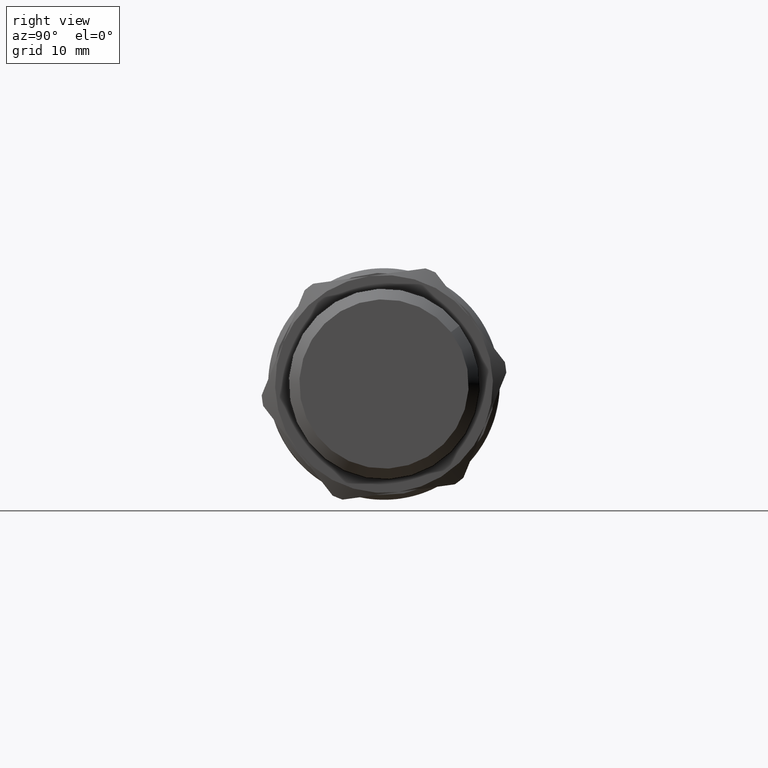
[diagram: clean part render]
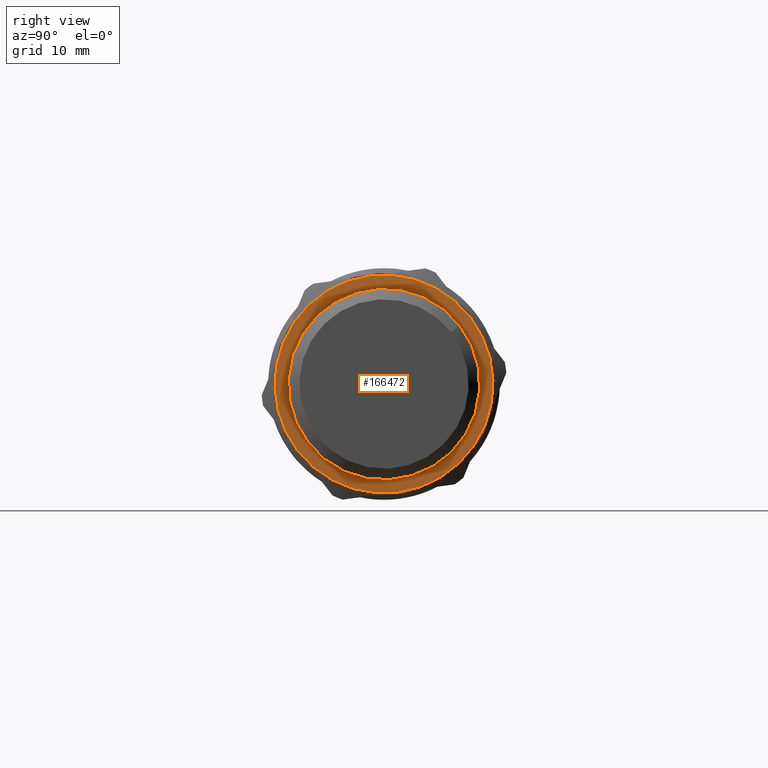
[diagram: same view with one face highlighted and labeled with its STEP entity id]
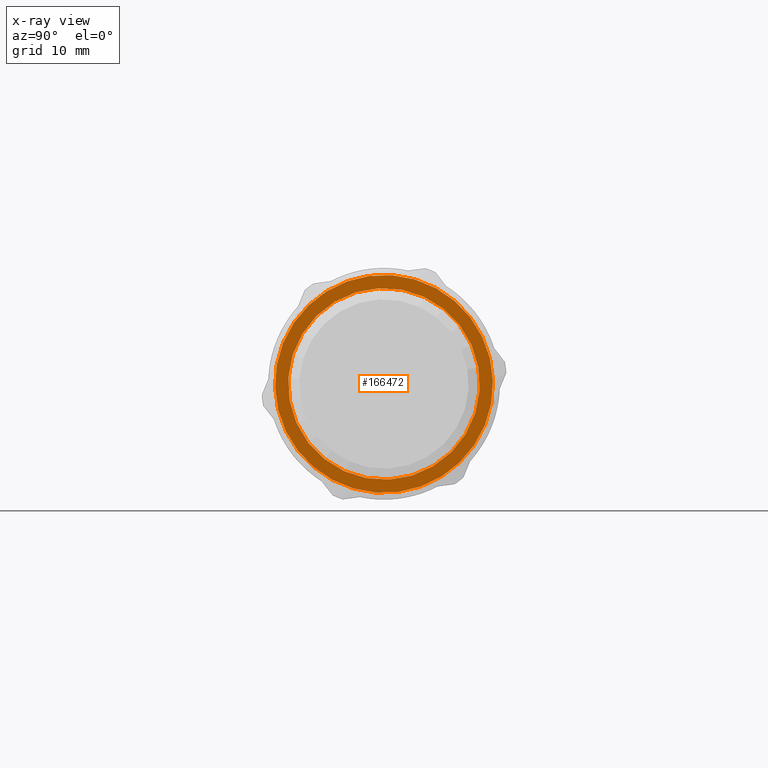
[diagram: x-ray of the same camera — body ghosted, the highlighted face saturated]
A machine part, right view. The second image highlights one B-rep face of the part: STEP entity #166472.
The next image is the same camera in x-ray: the body ghosted, the highlighted face saturated — about 0% of this face is hidden behind the body in this view.
In plain terms, the highlighted planar face has unit normal (1, 0, 0).
Its self-contained STEP definition (entity closure, byte-faithful):
#166369=CARTESIAN_POINT('',(57.200000000000003,-1.618645921667411,11.890331592528005));
#166370=VERTEX_POINT('',#166369);
#166385=CARTESIAN_POINT('',(57.200000000000003,-11.106652179383634,4.543377308367953));
#166386=VERTEX_POINT('',#166385);
#166400=CARTESIAN_POINT('',(57.200000000000003,-3.437559E-016,-6.409495E-031));
#166401=DIRECTION('',(-1.0,-1.790838E-017,-1.386720E-017));
#166402=DIRECTION('',(-2.264971E-017,0.790667188143019,0.61224619034667));
#166403=AXIS2_PLACEMENT_3D('',#166400,#166401,#166402);
#166404=CIRCLE('',#166403,11.999999999999993);
#166405=EDGE_CURVE('',#166386,#166370,#166404,.T.);
#166410=CARTESIAN_POINT('',(57.200000000000003,8.914772546312541,6.903075796158706));
#166411=DIRECTION('',(1.0,0.0,0.0));
#166412=DIRECTION('',(0.0,0.61224619034667,-0.790667188143019));
#166413=AXIS2_PLACEMENT_3D('',#166410,#166411,#166412);
#166414=PLANE('',#166413);
#166415=CARTESIAN_POINT('',(57.200000000000003,9.488006257716226,7.34695428416004));
#166416=VERTEX_POINT('',#166415);
#166417=CARTESIAN_POINT('',(57.200000000000003,11.106652179383632,-4.543377308367958));
#166418=VERTEX_POINT('',#166417);
#166419=CARTESIAN_POINT('',(57.200000000000003,-3.437559E-016,-6.409495E-031));
#166420=DIRECTION('',(-1.0,-1.790838E-017,-1.386720E-017));
#166421=DIRECTION('',(-2.264971E-017,0.790667188143019,0.61224619034667));
#166422=AXIS2_PLACEMENT_3D('',#166419,#166420,#166421);
#166423=CIRCLE('',#166422,11.999999999999993);
#166424=EDGE_CURVE('',#166416,#166418,#166423,.T.);
#166425=ORIENTED_EDGE('',*,*,#166424,.F.);
#166426=CARTESIAN_POINT('',(57.200000000000003,-3.437559E-016,-6.409495E-031));
#166427=DIRECTION('',(-1.0,-1.790838E-017,-1.386720E-017));
#166428=DIRECTION('',(-2.264971E-017,0.790667188143019,0.61224619034667));
#166429=AXIS2_PLACEMENT_3D('',#166426,#166427,#166428);
#166430=CIRCLE('',#166429,11.999999999999993);
#166431=EDGE_CURVE('',#166370,#166416,#166430,.T.);
#166432=ORIENTED_EDGE('',*,*,#166431,.F.);
#166433=ORIENTED_EDGE('',*,*,#166405,.F.);
#166434=CARTESIAN_POINT('',(57.200000000000003,-9.488006257716231,-7.346954284160047));
#166435=VERTEX_POINT('',#166434);
#166436=CARTESIAN_POINT('',(57.200000000000003,-3.437559E-016,-6.409495E-031));
#166437=DIRECTION('',(-1.0,-1.790838E-017,-1.386720E-017));
#166438=DIRECTION('',(-2.264971E-017,0.790667188143019,0.61224619034667));
#166439=AXIS2_PLACEMENT_3D('',#166436,#166437,#166438);
#166440=CIRCLE('',#166439,11.999999999999993);
#166441=EDGE_CURVE('',#166435,#166386,#166440,.T.);
#166442=ORIENTED_EDGE('',*,*,#166441,.F.);
#166443=CARTESIAN_POINT('',(57.200000000000003,1.618645921667401,-11.890331592528005));
#166444=VERTEX_POINT('',#166443);
#166445=CARTESIAN_POINT('',(57.200000000000003,-3.437559E-016,-6.409495E-031));
#166446=DIRECTION('',(-1.0,-1.790838E-017,-1.386720E-017));
#166447=DIRECTION('',(-2.264971E-017,0.790667188143019,0.61224619034667));
#166448=AXIS2_PLACEMENT_3D('',#166445,#166446,#166447);
#166449=CIRCLE('',#166448,11.999999999999993);
#166450=EDGE_CURVE('',#166444,#166435,#166449,.T.);
#166451=ORIENTED_EDGE('',*,*,#166450,.F.);
#166452=CARTESIAN_POINT('',(57.200000000000003,-3.437559E-016,-6.409495E-031));
#166453=DIRECTION('',(-1.0,-1.790838E-017,-1.386720E-017));
#166454=DIRECTION('',(-2.264971E-017,0.790667188143019,0.61224619034667));
#166455=AXIS2_PLACEMENT_3D('',#166452,#166453,#166454);
#166456=CIRCLE('',#166455,11.999999999999993);
#166457=EDGE_CURVE('',#166418,#166444,#166456,.T.);
#166458=ORIENTED_EDGE('',*,*,#166457,.F.);
#166459=EDGE_LOOP('',(#166425,#166432,#166433,#166442,#166451,#166458));
#166460=FACE_OUTER_BOUND('',#166459,.T.);
#166461=CARTESIAN_POINT('',(57.200000000000003,8.341538834908855,6.459197308157374));
#166462=VERTEX_POINT('',#166461);
#166463=CARTESIAN_POINT('',(57.200000000000003,-3.437559E-016,-6.409495E-031));
#166464=DIRECTION('',(-1.0,-1.790838E-017,-1.386720E-017));
#166465=DIRECTION('',(-2.264971E-017,0.790667188143019,0.61224619034667));
#166466=AXIS2_PLACEMENT_3D('',#166463,#166464,#166465);
#166467=CIRCLE('',#166466,10.550000000000002);
#166468=EDGE_CURVE('',#166462,#166462,#166467,.T.);
#166469=ORIENTED_EDGE('',*,*,#166468,.T.);
#166470=EDGE_LOOP('',(#166469));
#166471=FACE_BOUND('',#166470,.T.);
#166472=ADVANCED_FACE('',(#166460,#166471),#166414,.T.);